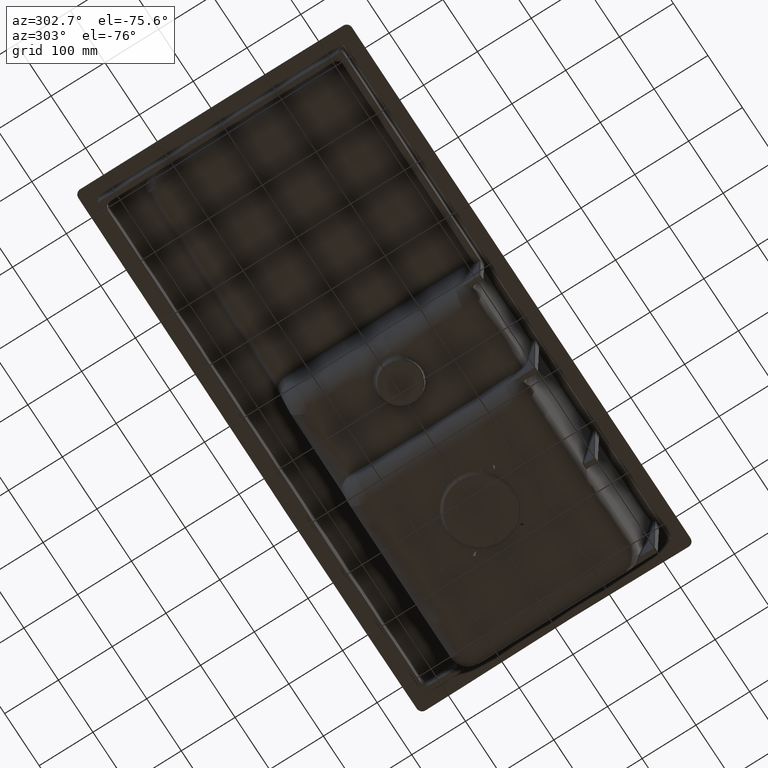
[diagram: clean part render]
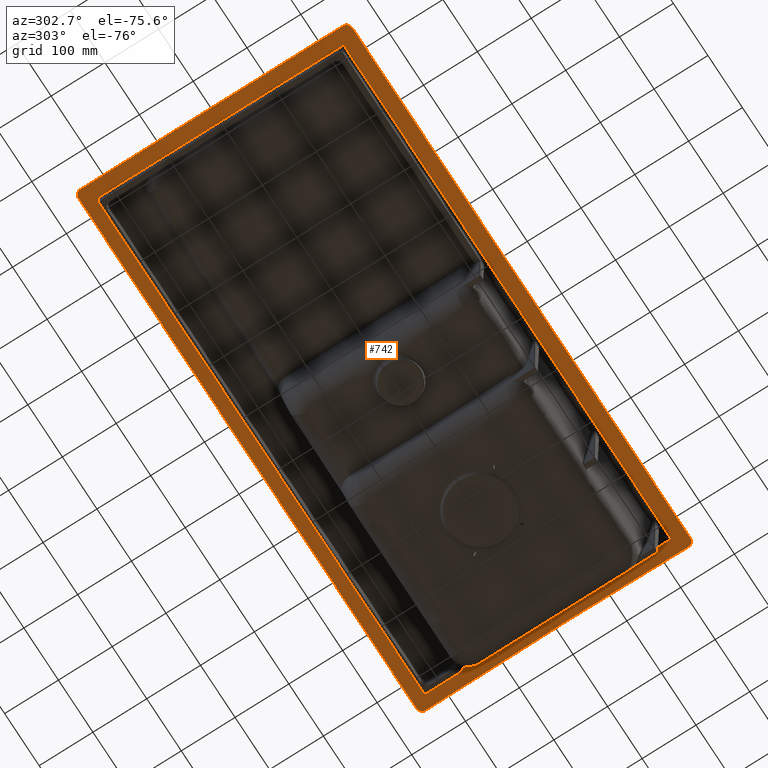
[diagram: same view with one face highlighted and labeled with its STEP entity id]
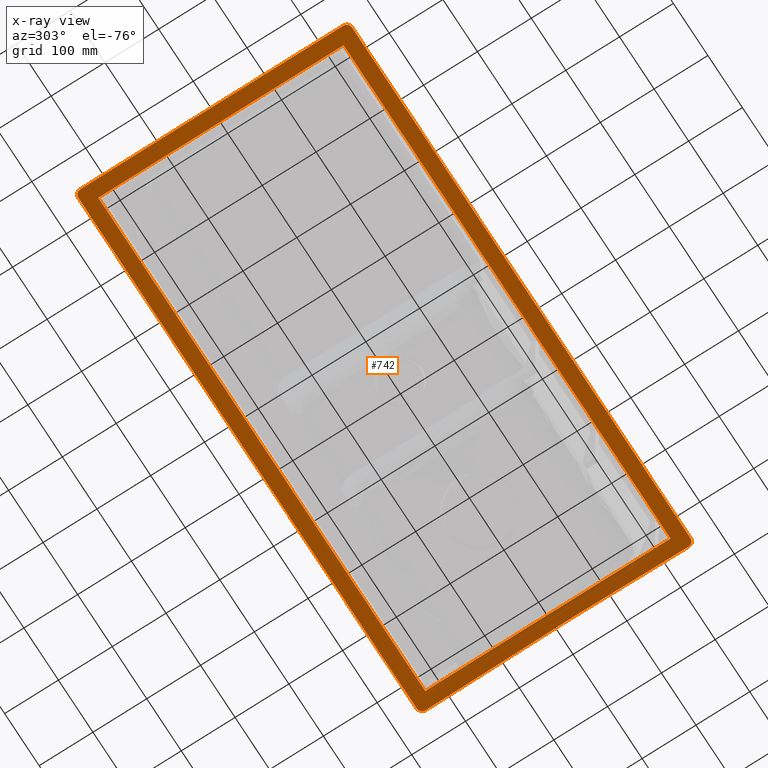
[diagram: x-ray of the same camera — body ghosted, the highlighted face saturated]
A machine part, auxiliary view. The second image highlights one B-rep face of the part: STEP entity #742.
The next image is the same camera in x-ray: the body ghosted, the highlighted face saturated — about 4% of this face is hidden behind the body in this view.
In plain terms, the highlighted planar face has unit normal (0, 0, 1).
Its self-contained STEP definition (entity closure, byte-faithful):
#68=LINE('',#16356,#86);
#70=LINE('',#16365,#88);
#71=LINE('',#16367,#89);
#72=LINE('',#16369,#90);
#86=VECTOR('',#6418,1.);
#88=VECTOR('',#6422,1.);
#89=VECTOR('',#6423,1.);
#90=VECTOR('',#6424,1.);
#131=FACE_BOUND('',#1657,.T.);
#132=FACE_BOUND('',#1658,.T.);
#148=PLANE('',#6210);
#742=ADVANCED_FACE('',(#131,#132),#148,.F.);
#1657=EDGE_LOOP('',(#2668,#2669,#2670,#2671));
#1658=EDGE_LOOP('',(#2672,#2673,#2674,#2675,#2676,#2677,#2678,#2679));
#2668=ORIENTED_EDGE('',*,*,#4825,.F.);
#2669=ORIENTED_EDGE('',*,*,#4822,.F.);
#2670=ORIENTED_EDGE('',*,*,#4826,.F.);
#2671=ORIENTED_EDGE('',*,*,#4827,.F.);
#2672=ORIENTED_EDGE('',*,*,#4451,.T.);
#2673=ORIENTED_EDGE('',*,*,#4448,.F.);
#2674=ORIENTED_EDGE('',*,*,#4463,.T.);
#2675=ORIENTED_EDGE('',*,*,#4460,.F.);
#2676=ORIENTED_EDGE('',*,*,#4455,.T.);
#2677=ORIENTED_EDGE('',*,*,#4444,.F.);
#2678=ORIENTED_EDGE('',*,*,#4439,.T.);
#2679=ORIENTED_EDGE('',*,*,#4436,.F.);
#3851=VERTEX_POINT('',#6892);
#3853=VERTEX_POINT('',#6900);
#3855=VERTEX_POINT('',#6939);
#3859=VERTEX_POINT('',#7061);
#3861=VERTEX_POINT('',#7093);
#3863=VERTEX_POINT('',#7101);
#3867=VERTEX_POINT('',#7188);
#3871=VERTEX_POINT('',#7330);
#4083=VERTEX_POINT('',#16355);
#4084=VERTEX_POINT('',#16357);
#4086=VERTEX_POINT('',#16366);
#4087=VERTEX_POINT('',#16368);
#4436=EDGE_CURVE('',#3851,#3853,#5407,.T.);
#4439=EDGE_CURVE('',#3855,#3853,#5410,.T.);
#4444=EDGE_CURVE('',#3855,#3859,#5415,.T.);
#4448=EDGE_CURVE('',#3861,#3863,#5419,.T.);
#4451=EDGE_CURVE('',#3851,#3863,#5422,.T.);
#4455=EDGE_CURVE('',#3867,#3859,#5426,.T.);
#4460=EDGE_CURVE('',#3867,#3871,#5430,.T.);
#4463=EDGE_CURVE('',#3861,#3871,#5433,.T.);
#4822=EDGE_CURVE('',#4083,#4084,#68,.T.);
#4825=EDGE_CURVE('',#4084,#4086,#70,.T.);
#4826=EDGE_CURVE('',#4087,#4083,#71,.T.);
#4827=EDGE_CURVE('',#4086,#4087,#72,.T.);
#5407=B_SPLINE_CURVE_WITH_KNOTS('',3,(#6894,#6895,#6896,#6897,#6898,#6899),
 .UNSPECIFIED.,.F.,.F.,(4,2,4),(0.,0.5,1.),.UNSPECIFIED.);
#5410=B_SPLINE_CURVE_WITH_KNOTS('',3,(#6924,#6925,#6926,#6927,#6928,#6929,
#6930,#6931,#6932,#6933,#6934,#6935,#6936,#6937,#6938),.UNSPECIFIED.,.F.,
 .F.,(4,1,1,1,1,1,1,1,1,1,1,1,4),(0.,0.124940619524682,0.187450546062197,
0.249960472599712,0.312470399137227,0.374980325674742,0.500000178749774,
0.625020031824804,0.750039884899834,0.812549811437349,0.875059737974866,
0.937569664512381,1.),.UNSPECIFIED.);
#5415=B_SPLINE_CURVE_WITH_KNOTS('',3,(#7055,#7056,#7057,#7058,#7059,#7060),
 .UNSPECIFIED.,.F.,.F.,(4,2,4),(0.,0.5,1.),.UNSPECIFIED.);
#5419=B_SPLINE_CURVE_WITH_KNOTS('',3,(#7095,#7096,#7097,#7098,#7099,#7100),
 .UNSPECIFIED.,.F.,.F.,(4,2,4),(0.,0.5,1.),.UNSPECIFIED.);
#5422=B_SPLINE_CURVE_WITH_KNOTS('',3,(#7129,#7130,#7131,#7132),
 .UNSPECIFIED.,.F.,.F.,(4,4),(0.,1.),.UNSPECIFIED.);
#5426=B_SPLINE_CURVE_WITH_KNOTS('',3,(#7170,#7171,#7172,#7173,#7174,#7175,
#7176,#7177,#7178,#7179,#7180,#7181,#7182,#7183,#7184,#7185,#7186,#7187),
 .UNSPECIFIED.,.F.,.F.,(4,1,1,1,1,1,1,1,1,1,1,1,1,1,1,4),(0.,0.124970313470005,
0.249980201099622,0.374990088729238,0.406242560636642,0.437495032544046,
0.468747504451451,0.499999976358855,0.562504920173664,0.625009863988472,
0.750019751618088,0.875029639247704,0.906282111155109,0.937534583062513,
0.968787054969917,1.),.UNSPECIFIED.);
#5430=B_SPLINE_CURVE_WITH_KNOTS('',3,(#7324,#7325,#7326,#7327,#7328,#7329),
 .UNSPECIFIED.,.F.,.F.,(4,2,4),(0.,0.5,1.),.UNSPECIFIED.);
#5433=B_SPLINE_CURVE_WITH_KNOTS('',3,(#7358,#7359,#7360,#7361,#7362,#7363,
#7364,#7365,#7366,#7367,#7368,#7369,#7370),.UNSPECIFIED.,.F.,.F.,(4,3,3,
3,4),(0.,0.0859937642656536,0.429968783301856,0.714984388569344,1.),
 .UNSPECIFIED.);
#6210=AXIS2_PLACEMENT_3D('',#16370,#6425,#6426);
#6418=DIRECTION('',(2.4123957796057E-16,1.,0.));
#6422=DIRECTION('',(1.,-4.66944076699212E-16,0.));
#6423=DIRECTION('',(-1.,0.,0.));
#6424=DIRECTION('',(-6.03098944901425E-16,-1.,0.));
#6425=DIRECTION('',(0.,0.,1.));
#6426=DIRECTION('',(-6.10622663543836E-16,-1.,0.));
#6892=CARTESIAN_POINT('',(490.263904500602,-224.52925099836,-9.99999999509043));
#6894=CARTESIAN_POINT('',(490.263904171286,-224.529250997276,-10.));
#6895=CARTESIAN_POINT('',(492.907235336875,-224.54003846838,-10.));
#6896=CARTESIAN_POINT('',(495.497306051806,-223.466197531775,-10.));
#6897=CARTESIAN_POINT('',(499.198833600649,-219.785144104218,-10.));
#6898=CARTESIAN_POINT('',(500.288952390333,-217.193814561455,-10.));
#6899=CARTESIAN_POINT('',(500.290897655615,-214.550436279707,-10.));
#6900=CARTESIAN_POINT('',(500.290897655609,-214.550436279707,-9.99999999999777));
#6924=CARTESIAN_POINT('',(500.287005371038,274.544103685451,-9.99999999999918));
#6925=CARTESIAN_POINT('',(500.291342303603,254.173740534219,-9.99999999999924));
#6926=CARTESIAN_POINT('',(500.313750999411,223.611979481844,-9.99999999999934));
#6927=CARTESIAN_POINT('',(500.30141579345,182.857612231343,-9.9999999999995));
#6928=CARTESIAN_POINT('',(499.788920943468,152.286364236697,-9.99999999999958));
#6929=CARTESIAN_POINT('',(499.204414096886,121.717082946526,-9.99999999999969));
#6930=CARTESIAN_POINT('',(498.657810622293,80.9540551175046,-9.99999999999982));
#6931=CARTESIAN_POINT('',(498.256296415064,29.9970449273595,-9.99999999999998));
#6932=CARTESIAN_POINT('',(498.280093010078,-31.1532295214459,-10.0000000000002));
#6933=CARTESIAN_POINT('',(498.694418902423,-82.1101393671967,-10.0000000000004));
#6934=CARTESIAN_POINT('',(499.246007707117,-122.873130928673,-10.0000000000005));
#6935=CARTESIAN_POINT('',(499.872972129016,-153.441676343042,-10.0000000000006));
#6936=CARTESIAN_POINT('',(500.309845481053,-184.001098862353,-10.0000000000007));
#6937=CARTESIAN_POINT('',(500.298388144683,-204.371774073564,-10.0000000000008));
#6938=CARTESIAN_POINT('',(500.290897655604,-214.550436279707,-10.0000000000008));
#6939=CARTESIAN_POINT('',(500.287005372909,274.54410368718,-10.0000000356351));
#7055=CARTESIAN_POINT('',(500.287005370953,274.544104084758,-10.));
#7056=CARTESIAN_POINT('',(500.286443705276,277.181726626481,-10.));
#7057=CARTESIAN_POINT('',(499.206524150234,279.761566392506,-10.));
#7058=CARTESIAN_POINT('',(495.523515186686,283.445886980217,-10.));
#7059=CARTESIAN_POINT('',(492.93680951739,284.528642494654,-10.));
#7060=CARTESIAN_POINT('',(490.299160937684,284.528219091158,-10.));
#7061=CARTESIAN_POINT('',(490.299160937684,284.528219091156,-9.99999999999923));
#7093=CARTESIAN_POINT('',(-499.608787092591,-214.542610320841,-10.0000000012358));
#7095=CARTESIAN_POINT('',(-499.608787092522,-214.542610320841,-10.));
#7096=CARTESIAN_POINT('',(-499.608909026271,-217.187281616016,-10.));
#7097=CARTESIAN_POINT('',(-498.523467588799,-219.774284279615,-10.));
#7098=CARTESIAN_POINT('',(-494.824307182824,-223.46124016683,-10.));
#7099=CARTESIAN_POINT('',(-492.226467369828,-224.540022028212,-10.));
#7100=CARTESIAN_POINT('',(-489.58179217533,-224.529229230564,-10.));
#7101=CARTESIAN_POINT('',(-489.581792099172,-224.529229231115,-10.0000000164684));
#7129=CARTESIAN_POINT('',(490.263904171284,-224.529250997928,-10.0000000124949));
#7130=CARTESIAN_POINT('',(163.65048527291,-223.196337121983,-10.0000000124749));
#7131=CARTESIAN_POINT('',(-162.968373217724,-223.196329866507,-10.0000000124549));
#7132=CARTESIAN_POINT('',(-489.581792175327,-224.529229231211,-10.0000000124349));
#7170=CARTESIAN_POINT('',(-489.622832084669,284.52955577267,-10.));
#7171=CARTESIAN_POINT('',(-448.802002540459,284.529560421911,-10.));
#7172=CARTESIAN_POINT('',(-367.147416765259,284.527998360113,-10.));
#7173=CARTESIAN_POINT('',(-244.659085190748,284.527976220879,-10.));
#7174=CARTESIAN_POINT('',(-152.783097491735,284.534984653527,-9.99999999999998));
#7175=CARTESIAN_POINT('',(-91.5325155079667,284.518052163435,-9.99999999999998));
#7176=CARTESIAN_POINT('',(-60.9069905732629,284.554457131833,-9.99999999999998));
#7177=CARTESIAN_POINT('',(-30.283487605584,284.90691347745,-9.99999999999998));
#7178=CARTESIAN_POINT('',(10.5484789618212,285.287148314846,-9.99999999999998));
#7179=CARTESIAN_POINT('',(61.5893727958811,285.661144479423,-10.));
#7180=CARTESIAN_POINT('',(143.256111154924,286.038430628458,-9.99999999999999));
#7181=CARTESIAN_POINT('',(245.340875037898,286.086199394235,-9.99999999999998));
#7182=CARTESIAN_POINT('',(337.215860662636,285.598403618605,-9.99999999999999));
#7183=CARTESIAN_POINT('',(398.464405904236,285.088509592613,-9.99999999999999));
#7184=CARTESIAN_POINT('',(429.087752247858,284.738246829947,-9.99999999999999));
#7185=CARTESIAN_POINT('',(459.69959089878,284.527427003592,-9.99999999999998));
#7186=CARTESIAN_POINT('',(480.10363314674,284.526579413322,-9.99999999999999));
#7187=CARTESIAN_POINT('',(490.299160937684,284.528219091155,-9.99999999999999));
#7188=CARTESIAN_POINT('',(-489.622832084352,284.529555772606,-9.99999999878763));
#7324=CARTESIAN_POINT('',(-489.62283205563,284.52955577267,-10.));
#7325=CARTESIAN_POINT('',(-492.260551348463,284.52955547243,-10.));
#7326=CARTESIAN_POINT('',(-494.840715424444,283.450100159178,-10.));
#7327=CARTESIAN_POINT('',(-498.52584311119,279.767640998453,-10.));
#7328=CARTESIAN_POINT('',(-499.609085883676,277.181009110719,-10.));
#7329=CARTESIAN_POINT('',(-499.60907259181,274.543263805531,-10.));
#7330=CARTESIAN_POINT('',(-499.609072591811,274.543263805532,-10.0000000000001));
#7358=CARTESIAN_POINT('',(-499.608787092591,-214.542610320841,-10.0000000012358));
#7359=CARTESIAN_POINT('',(-499.608140718633,-200.523164681429,-10.0000000012358));
#7360=CARTESIAN_POINT('',(-499.609091825624,-186.503717351037,-10.));
#7361=CARTESIAN_POINT('',(-499.617606968123,-172.484274282691,-10.));
#7362=CARTESIAN_POINT('',(-499.651667537027,-116.406503809318,-10.));
#7363=CARTESIAN_POINT('',(-499.711438076549,-60.328740130229,-10.));
#7364=CARTESIAN_POINT('',(-499.713858512573,-4.25095936522208,-10.));
#7365=CARTESIAN_POINT('',(-499.71586407116,42.2147491530657,-10.));
#7366=CARTESIAN_POINT('',(-499.696458742191,88.6804652659316,-10.));
#7367=CARTESIAN_POINT('',(-499.652070497549,135.146152625665,-10.));
#7368=CARTESIAN_POINT('',(-499.607682255415,181.611837360947,-10.));
#7369=CARTESIAN_POINT('',(-499.608838444979,228.077557869004,-10.0000000000001));
#7370=CARTESIAN_POINT('',(-499.609072591811,274.543263805532,-10.0000000000001));
#16355=CARTESIAN_POINT('',(-473.186505870616,-198.108992524389,-10.));
#16356=CARTESIAN_POINT('',(-473.186505870616,260.106961263517,-10.));
#16357=CARTESIAN_POINT('',(-473.186505870616,258.106961263517,-10.));
#16365=CARTESIAN_POINT('',(475.867875179233,258.106961263517,-10.));
#16366=CARTESIAN_POINT('',(473.867875179233,258.106961263517,-10.));
#16367=CARTESIAN_POINT('',(-475.186505870616,-198.108992524389,-10.));
#16368=CARTESIAN_POINT('',(473.867875179233,-198.108992524389,-10.));
#16369=CARTESIAN_POINT('',(473.867875179233,-200.108992524389,-10.));
#16370=CARTESIAN_POINT('',(475.867875179233,-200.108992524389,-10.));